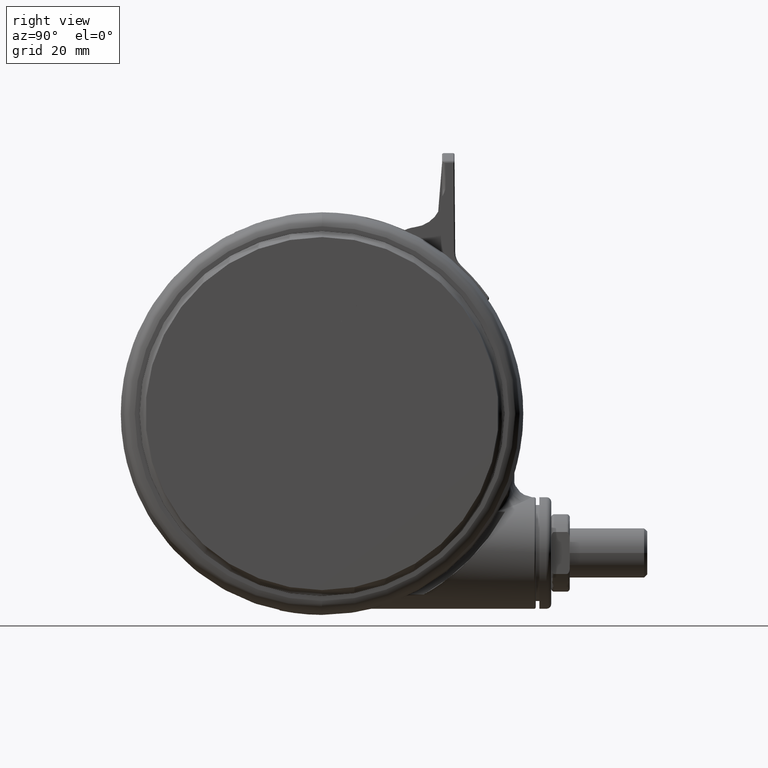
[diagram: clean part render]
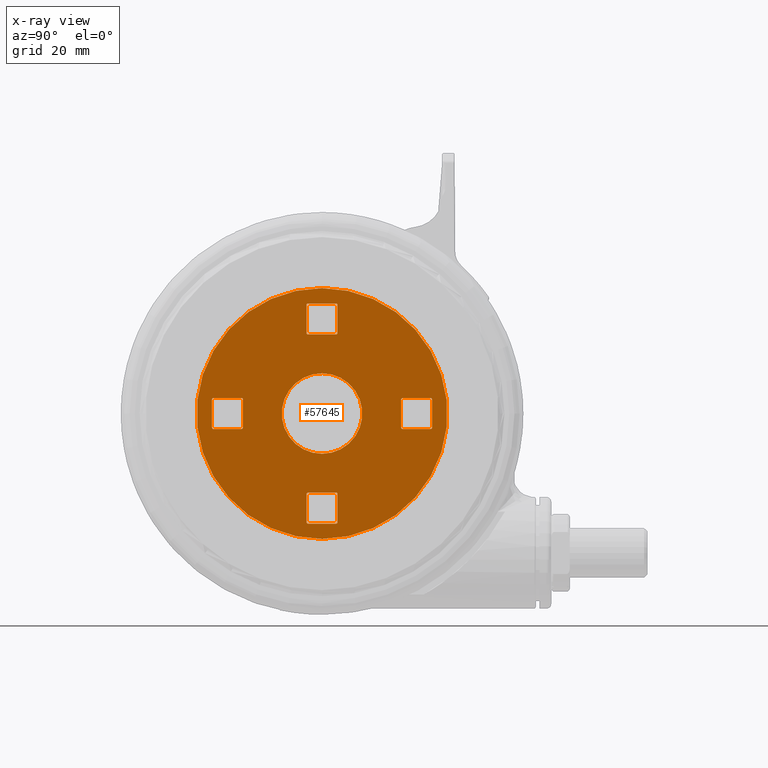
[diagram: x-ray — body ghosted, one internal face saturated and labeled with its STEP entity id]
A machine part, right view, then the same camera in x-ray: the body is ghosted and one INTERNAL B-rep face — a face not visible from any outside direction — is saturated and labeled: STEP entity #57645.
In plain terms, the highlighted planar face has unit normal (-1, 0, 0).
Its self-contained STEP definition (entity closure, byte-faithful):
#161 = EDGE_CURVE ( 'NONE', #8441, #63130, #54977, .T. ) ;
#322 = ORIENTED_EDGE ( 'NONE', *, *, #51295, .F. ) ;
#428 = CARTESIAN_POINT ( 'NONE',  ( -26.04999999999997200, 4.499999999999881900, -3.800000000000094900 ) ) ;
#753 = CARTESIAN_POINT ( 'NONE',  ( 5.000000000000027500, 35.04999999999996900, -3.800000000000094900 ) ) ;
#840 = VERTEX_POINT ( 'NONE', #64019 ) ;
#1384 = PLANE ( 'NONE',  #15506 ) ;
#1468 = LINE ( 'NONE', #53430, #32961 ) ;
#1544 = DIRECTION ( 'NONE',  ( -1.000000000000000000, 0.0000000000000000000, 0.0000000000000000000 ) ) ;
#1717 = CARTESIAN_POINT ( 'NONE',  ( -4.999999999999972500, 26.04999999999997200, -3.800000000000094900 ) ) ;
#2146 = LINE ( 'NONE', #57608, #68961 ) ;
#2543 = CARTESIAN_POINT ( 'NONE',  ( -4.499999999999971600, 26.04999999999997200, -3.800000000000094900 ) ) ;
#2713 = CIRCLE ( 'NONE', #47884, 0.5000000000000004400 ) ;
#2761 = LINE ( 'NONE', #50977, #67626 ) ;
#2856 = CARTESIAN_POINT ( 'NONE',  ( 4.500000000000027500, -35.05000000000002600, -3.800000000000094900 ) ) ;
#3029 = DIRECTION ( 'NONE',  ( -1.000000000000000000, 0.0000000000000000000, 0.0000000000000000000 ) ) ;
#3150 = CARTESIAN_POINT ( 'NONE',  ( -40.49999999999997200, -2.775557561562891400E-014, -3.800000000000094900 ) ) ;
#3200 = VERTEX_POINT ( 'NONE', #66748 ) ;
#3324 = EDGE_CURVE ( 'NONE', #64024, #42868, #7279, .T. ) ;
#3955 = CARTESIAN_POINT ( 'NONE',  ( -35.54999999999996900, -4.500000000000157200, -3.800000000000094900 ) ) ;
#4113 = VECTOR ( 'NONE', #22149, 1000.000000000000000 ) ;
#4374 = VERTEX_POINT ( 'NONE', #10278 ) ;
#4440 = DIRECTION ( 'NONE',  ( -1.000000000000000000, 0.0000000000000000000, 0.0000000000000000000 ) ) ;
#4458 = CIRCLE ( 'NONE', #80221, 0.5000000000000004400 ) ;
#4743 = EDGE_CURVE ( 'NONE', #35742, #20477, #2713, .T. ) ;
#4852 = DIRECTION ( 'NONE',  ( 0.0000000000000000000, 0.0000000000000000000, -1.000000000000000000 ) ) ;
#4883 = EDGE_CURVE ( 'NONE', #840, #50144, #26281, .T. ) ;
#4924 = DIRECTION ( 'NONE',  ( -1.000000000000000000, 0.0000000000000000000, 0.0000000000000000000 ) ) ;
#4938 = CARTESIAN_POINT ( 'NONE',  ( 35.55000000000002600, 4.500000000000351700, -3.800000000000094900 ) ) ;
#5625 = VERTEX_POINT ( 'NONE', #24112 ) ;
#5724 = VERTEX_POINT ( 'NONE', #6448 ) ;
#5732 = ORIENTED_EDGE ( 'NONE', *, *, #47492, .T. ) ;
#5955 = CIRCLE ( 'NONE', #54502, 0.5000000000000004400 ) ;
#6088 = EDGE_LOOP ( 'NONE', ( #16031, #6110, #16023, #64239, #45288, #54819, #26090, #15372 ) ) ;
#6110 = ORIENTED_EDGE ( 'NONE', *, *, #9122, .T. ) ;
#6443 = DIRECTION ( 'NONE',  ( 1.000000000000000000, 0.0000000000000000000, 0.0000000000000000000 ) ) ;
#6448 = CARTESIAN_POINT ( 'NONE',  ( 5.000000000000027500, -35.05000000000002600, -3.800000000000094900 ) ) ;
#6763 = DIRECTION ( 'NONE',  ( -1.000000000000000000, 0.0000000000000000000, 0.0000000000000000000 ) ) ;
#7218 = CARTESIAN_POINT ( 'NONE',  ( 4.500000000000027500, 35.54999999999996900, -3.800000000000094900 ) ) ;
#7279 = CIRCLE ( 'NONE', #57257, 13.00000000000000000 ) ;
#7708 = DIRECTION ( 'NONE',  ( -1.000000000000000000, 0.0000000000000000000, 0.0000000000000000000 ) ) ;
#8168 = ORIENTED_EDGE ( 'NONE', *, *, #74960, .F. ) ;
#8274 = EDGE_CURVE ( 'NONE', #28918, #66979, #25752, .T. ) ;
#8441 = VERTEX_POINT ( 'NONE', #36117 ) ;
#8789 = CARTESIAN_POINT ( 'NONE',  ( 35.05000000000002600, -4.999999999999657200, -3.800000000000094900 ) ) ;
#8878 = DIRECTION ( 'NONE',  ( -1.000000000000000000, 0.0000000000000000000, 0.0000000000000000000 ) ) ;
#8898 = VERTEX_POINT ( 'NONE', #28825 ) ;
#9122 = EDGE_CURVE ( 'NONE', #71071, #79209, #5955, .T. ) ;
#9169 = DIRECTION ( 'NONE',  ( -1.000000000000000000, 0.0000000000000000000, 0.0000000000000000000 ) ) ;
#9193 = LINE ( 'NONE', #32309, #57338 ) ;
#10278 = CARTESIAN_POINT ( 'NONE',  ( -4.999999999999972500, 35.04999999999996900, -3.800000000000094900 ) ) ;
#10374 = CARTESIAN_POINT ( 'NONE',  ( -12.99999999999997200, -2.775557561562891400E-014, -3.800000000000094900 ) ) ;
#11351 = VERTEX_POINT ( 'NONE', #60064 ) ;
#11688 = DIRECTION ( 'NONE',  ( 0.0000000000000000000, 0.0000000000000000000, -1.000000000000000000 ) ) ;
#11876 = AXIS2_PLACEMENT_3D ( 'NONE', #428, #44429, #6763 ) ;
#12312 = ORIENTED_EDGE ( 'NONE', *, *, #72865, .T. ) ;
#12522 = VECTOR ( 'NONE', #39923, 1000.000000000000000 ) ;
#13104 = CARTESIAN_POINT ( 'NONE',  ( -35.04999999999996900, -4.500000000000157200, -3.800000000000094900 ) ) ;
#13158 = AXIS2_PLACEMENT_3D ( 'NONE', #42558, #4852, #48801 ) ;
#13251 = CARTESIAN_POINT ( 'NONE',  ( 2.775557561562891400E-014, -2.775557561562891400E-014, -3.800000000000094900 ) ) ;
#14377 = CARTESIAN_POINT ( 'NONE',  ( 35.05000000000002600, 5.000000000000342800, -3.800000000000094900 ) ) ;
#14631 = EDGE_CURVE ( 'NONE', #8441, #58967, #45954, .T. ) ;
#14870 = VERTEX_POINT ( 'NONE', #23390 ) ;
#14876 = CARTESIAN_POINT ( 'NONE',  ( -4.499999999999971600, -25.55000000000002900, -3.800000000000094900 ) ) ;
#15238 = EDGE_CURVE ( 'NONE', #4374, #66979, #56646, .T. ) ;
#15372 = ORIENTED_EDGE ( 'NONE', *, *, #17020, .T. ) ;
#15506 = AXIS2_PLACEMENT_3D ( 'NONE', #45099, #45381, #7708 ) ;
#15562 = DIRECTION ( 'NONE',  ( 1.047444401652940200E-014, -1.000000000000000000, 0.0000000000000000000 ) ) ;
#15838 = VERTEX_POINT ( 'NONE', #50979 ) ;
#15972 = CARTESIAN_POINT ( 'NONE',  ( -25.54999999999997200, -4.500000000000117200, -3.800000000000094900 ) ) ;
#16023 = ORIENTED_EDGE ( 'NONE', *, *, #49886, .F. ) ;
#16031 = ORIENTED_EDGE ( 'NONE', *, *, #19294, .F. ) ;
#16070 = EDGE_CURVE ( 'NONE', #35742, #53938, #1468, .T. ) ;
#16399 = CIRCLE ( 'NONE', #34636, 0.4999999999999995600 ) ;
#16814 = ORIENTED_EDGE ( 'NONE', *, *, #25333, .T. ) ;
#16848 = AXIS2_PLACEMENT_3D ( 'NONE', #78284, #40734, #3029 ) ;
#16857 = ORIENTED_EDGE ( 'NONE', *, *, #39598, .F. ) ;
#17020 = EDGE_CURVE ( 'NONE', #55137, #11351, #49492, .T. ) ;
#17314 = ORIENTED_EDGE ( 'NONE', *, *, #41868, .F. ) ;
#17614 = CARTESIAN_POINT ( 'NONE',  ( -4.999999999999972500, -26.05000000000002900, -3.800000000000094900 ) ) ;
#18223 = VERTEX_POINT ( 'NONE', #45674 ) ;
#19095 = CARTESIAN_POINT ( 'NONE',  ( 26.05000000000002900, -4.499999999999752200, -3.800000000000094900 ) ) ;
#19113 = ORIENTED_EDGE ( 'NONE', *, *, #26263, .T. ) ;
#19294 = EDGE_CURVE ( 'NONE', #71071, #11351, #81178, .T. ) ;
#19392 = DIRECTION ( 'NONE',  ( -1.000000000000000000, 0.0000000000000000000, 0.0000000000000000000 ) ) ;
#19395 = ORIENTED_EDGE ( 'NONE', *, *, #15238, .F. ) ;
#19544 = DIRECTION ( 'NONE',  ( -1.000000000000000000, 0.0000000000000000000, 0.0000000000000000000 ) ) ;
#19904 = VECTOR ( 'NONE', #6443, 1000.000000000000000 ) ;
#19945 = DIRECTION ( 'NONE',  ( 1.000000000000000000, 1.047444401652940200E-014, 0.0000000000000000000 ) ) ;
#20055 = CIRCLE ( 'NONE', #47712, 0.4999999999999995600 ) ;
#20477 = VERTEX_POINT ( 'NONE', #8789 ) ;
#21564 = CARTESIAN_POINT ( 'NONE',  ( -4.499999999999971600, -26.05000000000002900, -3.800000000000094900 ) ) ;
#21886 = VECTOR ( 'NONE', #66448, 1000.000000000000000 ) ;
#22149 = DIRECTION ( 'NONE',  ( 3.491481338843135300E-015, -1.000000000000000000, 0.0000000000000000000 ) ) ;
#22251 = FACE_BOUND ( 'NONE', #46866, .T. ) ;
#22548 = CARTESIAN_POINT ( 'NONE',  ( -4.999999999999972500, -25.55000000000002900, -3.800000000000094900 ) ) ;
#23390 = CARTESIAN_POINT ( 'NONE',  ( 4.500000000000027500, -25.55000000000002900, -3.800000000000094900 ) ) ;
#23684 = AXIS2_PLACEMENT_3D ( 'NONE', #13251, #57188, #19544 ) ;
#24112 = CARTESIAN_POINT ( 'NONE',  ( 5.000000000000027500, 26.04999999999997200, -3.800000000000094900 ) ) ;
#24224 = FACE_BOUND ( 'NONE', #35495, .T. ) ;
#24543 = VECTOR ( 'NONE', #35600, 1000.000000000000000 ) ;
#24615 = CARTESIAN_POINT ( 'NONE',  ( 4.500000000000027500, 25.54999999999997200, -3.800000000000094900 ) ) ;
#24619 = CIRCLE ( 'NONE', #24730, 0.4999999999999995600 ) ;
#24730 = AXIS2_PLACEMENT_3D ( 'NONE', #21564, #65478, #27873 ) ;
#25026 = DIRECTION ( 'NONE',  ( 8.673617379884039200E-017, -1.000000000000000000, 0.0000000000000000000 ) ) ;
#25333 = EDGE_CURVE ( 'NONE', #65490, #54581, #63418, .T. ) ;
#25447 = DIRECTION ( 'NONE',  ( -1.000000000000000000, 0.0000000000000000000, 0.0000000000000000000 ) ) ;
#25752 = CIRCLE ( 'NONE', #27077, 0.4999999999999995600 ) ;
#26090 = ORIENTED_EDGE ( 'NONE', *, *, #32573, .F. ) ;
#26263 = EDGE_CURVE ( 'NONE', #74206, #53938, #79961, .T. ) ;
#26281 = CIRCLE ( 'NONE', #16848, 0.5000000000000004400 ) ;
#26674 = DIRECTION ( 'NONE',  ( 0.0000000000000000000, 0.0000000000000000000, -1.000000000000000000 ) ) ;
#27077 = AXIS2_PLACEMENT_3D ( 'NONE', #2543, #46530, #8878 ) ;
#27644 = VERTEX_POINT ( 'NONE', #35654 ) ;
#27873 = DIRECTION ( 'NONE',  ( -1.000000000000000000, 0.0000000000000000000, 0.0000000000000000000 ) ) ;
#27925 = DIRECTION ( 'NONE',  ( 0.0000000000000000000, 0.0000000000000000000, -1.000000000000000000 ) ) ;
#27933 = CARTESIAN_POINT ( 'NONE',  ( 26.05000000000002900, 4.500000000000252200, -3.800000000000094900 ) ) ;
#28089 = CIRCLE ( 'NONE', #46912, 0.5000000000000004400 ) ;
#28144 = FACE_OUTER_BOUND ( 'NONE', #78892, .T. ) ;
#28207 = DIRECTION ( 'NONE',  ( 0.0000000000000000000, 0.0000000000000000000, -1.000000000000000000 ) ) ;
#28825 = CARTESIAN_POINT ( 'NONE',  ( 5.000000000000027500, -26.05000000000002900, -3.800000000000094900 ) ) ;
#28918 = VERTEX_POINT ( 'NONE', #51537 ) ;
#29049 = CIRCLE ( 'NONE', #69997, 0.4999999999999995600 ) ;
#29345 = LINE ( 'NONE', #70374, #77471 ) ;
#29411 = VERTEX_POINT ( 'NONE', #7218 ) ;
#30806 = DIRECTION ( 'NONE',  ( -1.000000000000000000, 0.0000000000000000000, 0.0000000000000000000 ) ) ;
#31712 = ORIENTED_EDGE ( 'NONE', *, *, #64785, .T. ) ;
#31721 = VECTOR ( 'NONE', #61126, 1000.000000000000000 ) ;
#32078 = CARTESIAN_POINT ( 'NONE',  ( -26.04999999999997200, -4.500000000000127000, -3.800000000000094900 ) ) ;
#32240 = CARTESIAN_POINT ( 'NONE',  ( -25.54999999999997200, 4.499999999999877400, -3.800000000000094900 ) ) ;
#32309 = CARTESIAN_POINT ( 'NONE',  ( 5.000000000000027500, -35.55000000000002600, -3.800000000000094900 ) ) ;
#32313 = CARTESIAN_POINT ( 'NONE',  ( -35.54999999999996900, -5.000000000000158100, -3.800000000000094900 ) ) ;
#32573 = EDGE_CURVE ( 'NONE', #55137, #56603, #29345, .T. ) ;
#32961 = VECTOR ( 'NONE', #47124, 1000.000000000000000 ) ;
#33566 = CARTESIAN_POINT ( 'NONE',  ( -4.999999999999972500, -35.55000000000002600, -3.800000000000094900 ) ) ;
#33686 = CIRCLE ( 'NONE', #75150, 13.00000000000000000 ) ;
#33779 = ORIENTED_EDGE ( 'NONE', *, *, #70578, .F. ) ;
#33845 = EDGE_LOOP ( 'NONE', ( #77500, #56795, #65562, #77045, #44550, #81191, #322, #77759 ) ) ;
#34266 = DIRECTION ( 'NONE',  ( -1.000000000000000000, 0.0000000000000000000, 0.0000000000000000000 ) ) ;
#34636 = AXIS2_PLACEMENT_3D ( 'NONE', #65516, #27925, #71839 ) ;
#35162 = ORIENTED_EDGE ( 'NONE', *, *, #40903, .F. ) ;
#35348 = CARTESIAN_POINT ( 'NONE',  ( -4.999999999999972500, -35.05000000000002600, -3.800000000000094900 ) ) ;
#35495 = EDGE_LOOP ( 'NONE', ( #19395, #12312, #43836, #59260, #33779, #74868, #16857, #74862 ) ) ;
#35600 = DIRECTION ( 'NONE',  ( -1.000000000000000000, -1.056118019032824000E-014, 0.0000000000000000000 ) ) ;
#35654 = CARTESIAN_POINT ( 'NONE',  ( 25.55000000000002900, -4.499999999999757500, -3.800000000000094900 ) ) ;
#35722 = LINE ( 'NONE', #46743, #31721 ) ;
#35742 = VERTEX_POINT ( 'NONE', #67727 ) ;
#36117 = CARTESIAN_POINT ( 'NONE',  ( -4.499999999999971600, -35.55000000000002600, -3.800000000000094900 ) ) ;
#36937 = ORIENTED_EDGE ( 'NONE', *, *, #44014, .T. ) ;
#37117 = CARTESIAN_POINT ( 'NONE',  ( 2.775557561562891400E-014, -2.775557561562891400E-014, -3.800000000000094900 ) ) ;
#37241 = CARTESIAN_POINT ( 'NONE',  ( 4.500000000000027500, 35.04999999999996900, -3.800000000000094900 ) ) ;
#37344 = LINE ( 'NONE', #58406, #54015 ) ;
#37822 = CARTESIAN_POINT ( 'NONE',  ( -4.999999999999972500, 25.54999999999997200, -3.800000000000094900 ) ) ;
#38036 = VECTOR ( 'NONE', #25026, 1000.000000000000000 ) ;
#38424 = DIRECTION ( 'NONE',  ( -1.000000000000000000, 0.0000000000000000000, 0.0000000000000000000 ) ) ;
#38633 = EDGE_CURVE ( 'NONE', #5724, #58967, #20055, .T. ) ;
#38974 = FACE_BOUND ( 'NONE', #6088, .T. ) ;
#39130 = DIRECTION ( 'NONE',  ( -3.491481338843135300E-015, 1.000000000000000000, 0.0000000000000000000 ) ) ;
#39256 = DIRECTION ( 'NONE',  ( 0.0000000000000000000, 0.0000000000000000000, -1.000000000000000000 ) ) ;
#39598 = EDGE_CURVE ( 'NONE', #28918, #45297, #51370, .T. ) ;
#39923 = DIRECTION ( 'NONE',  ( 1.000000000000000000, 0.0000000000000000000, 0.0000000000000000000 ) ) ;
#40734 = DIRECTION ( 'NONE',  ( 0.0000000000000000000, 0.0000000000000000000, -1.000000000000000000 ) ) ;
#40903 = EDGE_CURVE ( 'NONE', #42983, #27644, #74758, .T. ) ;
#41322 = EDGE_CURVE ( 'NONE', #75895, #59349, #24619, .T. ) ;
#41851 = CARTESIAN_POINT ( 'NONE',  ( -26.04999999999997200, 4.999999999999881900, -3.800000000000094900 ) ) ;
#41868 = EDGE_CURVE ( 'NONE', #74206, #18223, #70690, .T. ) ;
#42116 = DIRECTION ( 'NONE',  ( 0.0000000000000000000, 0.0000000000000000000, -1.000000000000000000 ) ) ;
#42558 = CARTESIAN_POINT ( 'NONE',  ( 35.05000000000002600, 4.500000000000341900, -3.800000000000094900 ) ) ;
#42623 = DIRECTION ( 'NONE',  ( -0.0000000000000000000, -0.0000000000000000000, 1.000000000000000000 ) ) ;
#42868 = VERTEX_POINT ( 'NONE', #10374 ) ;
#42874 = CIRCLE ( 'NONE', #51098, 0.4999999999999995600 ) ;
#42983 = VERTEX_POINT ( 'NONE', #74572 ) ;
#43426 = DIRECTION ( 'NONE',  ( -1.000000000000000000, 0.0000000000000000000, 0.0000000000000000000 ) ) ;
#43546 = DIRECTION ( 'NONE',  ( -1.000000000000000000, 0.0000000000000000000, 0.0000000000000000000 ) ) ;
#43836 = ORIENTED_EDGE ( 'NONE', *, *, #69929, .F. ) ;
#43848 = AXIS2_PLACEMENT_3D ( 'NONE', #80155, #42623, #4924 ) ;
#44014 = EDGE_CURVE ( 'NONE', #54581, #65490, #57698, .T. ) ;
#44167 = ORIENTED_EDGE ( 'NONE', *, *, #67953, .T. ) ;
#44429 = DIRECTION ( 'NONE',  ( 0.0000000000000000000, 0.0000000000000000000, -1.000000000000000000 ) ) ;
#44550 = ORIENTED_EDGE ( 'NONE', *, *, #74655, .F. ) ;
#45099 = CARTESIAN_POINT ( 'NONE',  ( 2.775557561562891400E-014, 53.99999999999997200, -3.800000000000094900 ) ) ;
#45158 = ORIENTED_EDGE ( 'NONE', *, *, #4743, .T. ) ;
#45288 = ORIENTED_EDGE ( 'NONE', *, *, #59417, .F. ) ;
#45297 = VERTEX_POINT ( 'NONE', #24615 ) ;
#45381 = DIRECTION ( 'NONE',  ( 0.0000000000000000000, 0.0000000000000000000, -1.000000000000000000 ) ) ;
#45674 = CARTESIAN_POINT ( 'NONE',  ( 26.05000000000002900, 5.000000000000252200, -3.800000000000094900 ) ) ;
#45785 = DIRECTION ( 'NONE',  ( -1.000000000000000000, 0.0000000000000000000, 0.0000000000000000000 ) ) ;
#45954 = LINE ( 'NONE', #33566, #12522 ) ;
#46530 = DIRECTION ( 'NONE',  ( 0.0000000000000000000, 0.0000000000000000000, -1.000000000000000000 ) ) ;
#46671 = EDGE_CURVE ( 'NONE', #5625, #45297, #16399, .T. ) ;
#46743 = CARTESIAN_POINT ( 'NONE',  ( -25.54999999999997200, 4.999999999999881900, -3.800000000000094900 ) ) ;
#46824 = DIRECTION ( 'NONE',  ( 0.0000000000000000000, 0.0000000000000000000, -1.000000000000000000 ) ) ;
#46866 = EDGE_LOOP ( 'NONE', ( #44167, #57971 ) ) ;
#46912 = AXIS2_PLACEMENT_3D ( 'NONE', #27933, #71851, #34266 ) ;
#47124 = DIRECTION ( 'NONE',  ( -1.047444401652940200E-014, 1.000000000000000000, 0.0000000000000000000 ) ) ;
#47492 = EDGE_CURVE ( 'NONE', #42983, #18223, #28089, .T. ) ;
#47499 = EDGE_CURVE ( 'NONE', #14870, #8898, #42874, .T. ) ;
#47712 = AXIS2_PLACEMENT_3D ( 'NONE', #2856, #46824, #9169 ) ;
#47884 = AXIS2_PLACEMENT_3D ( 'NONE', #64300, #26674, #70616 ) ;
#48454 = CARTESIAN_POINT ( 'NONE',  ( 4.500000000000027500, -35.55000000000002600, -3.800000000000094900 ) ) ;
#48801 = DIRECTION ( 'NONE',  ( -1.000000000000000000, 0.0000000000000000000, 0.0000000000000000000 ) ) ;
#49309 = CARTESIAN_POINT ( 'NONE',  ( -4.499999999999971600, -35.05000000000002600, -3.800000000000094900 ) ) ;
#49492 = CIRCLE ( 'NONE', #80814, 0.5000000000000004400 ) ;
#49886 = EDGE_CURVE ( 'NONE', #840, #79209, #54256, .T. ) ;
#50144 = VERTEX_POINT ( 'NONE', #69526 ) ;
#50282 = CARTESIAN_POINT ( 'NONE',  ( -4.999999999999972500, 35.54999999999996900, -3.800000000000094900 ) ) ;
#50337 = ORIENTED_EDGE ( 'NONE', *, *, #16070, .F. ) ;
#50354 = CARTESIAN_POINT ( 'NONE',  ( -35.04999999999996900, -5.000000000000158100, -3.800000000000094900 ) ) ;
#50977 = CARTESIAN_POINT ( 'NONE',  ( 5.000000000000027500, 25.54999999999997200, -3.800000000000094900 ) ) ;
#50979 = CARTESIAN_POINT ( 'NONE',  ( 26.05000000000002900, -4.999999999999758400, -3.800000000000094900 ) ) ;
#51098 = AXIS2_PLACEMENT_3D ( 'NONE', #65803, #28207, #72123 ) ;
#51164 = EDGE_CURVE ( 'NONE', #81174, #56603, #63850, .T. ) ;
#51295 = EDGE_CURVE ( 'NONE', #14870, #59349, #37344, .T. ) ;
#51370 = LINE ( 'NONE', #37822, #19904 ) ;
#51537 = CARTESIAN_POINT ( 'NONE',  ( -4.499999999999971600, 25.54999999999997200, -3.800000000000094900 ) ) ;
#53008 = EDGE_CURVE ( 'NONE', #5724, #8898, #9193, .T. ) ;
#53430 = CARTESIAN_POINT ( 'NONE',  ( 35.55000000000002600, -4.999999999999657200, -3.800000000000094900 ) ) ;
#53938 = VERTEX_POINT ( 'NONE', #4938 ) ;
#54015 = VECTOR ( 'NONE', #45785, 1000.000000000000000 ) ;
#54256 = LINE ( 'NONE', #72648, #4113 ) ;
#54502 = AXIS2_PLACEMENT_3D ( 'NONE', #13104, #57043, #19392 ) ;
#54581 = VERTEX_POINT ( 'NONE', #3150 ) ;
#54819 = ORIENTED_EDGE ( 'NONE', *, *, #51164, .T. ) ;
#54977 = CIRCLE ( 'NONE', #60774, 0.4999999999999995600 ) ;
#55137 = VERTEX_POINT ( 'NONE', #15972 ) ;
#55621 = DIRECTION ( 'NONE',  ( -1.000000000000000000, 0.0000000000000000000, 0.0000000000000000000 ) ) ;
#56603 = VERTEX_POINT ( 'NONE', #32240 ) ;
#56646 = LINE ( 'NONE', #50282, #38036 ) ;
#56795 = ORIENTED_EDGE ( 'NONE', *, *, #38633, .T. ) ;
#57043 = DIRECTION ( 'NONE',  ( 0.0000000000000000000, 0.0000000000000000000, -1.000000000000000000 ) ) ;
#57188 = DIRECTION ( 'NONE',  ( -0.0000000000000000000, -0.0000000000000000000, 1.000000000000000000 ) ) ;
#57257 = AXIS2_PLACEMENT_3D ( 'NONE', #37117, #80972, #43426 ) ;
#57338 = VECTOR ( 'NONE', #69905, 1000.000000000000000 ) ;
#57603 = FACE_BOUND ( 'NONE', #33845, .T. ) ;
#57608 = CARTESIAN_POINT ( 'NONE',  ( 25.55000000000002900, -4.999999999999758400, -3.800000000000094900 ) ) ;
#57645 = ADVANCED_FACE ( 'NONE', ( #28144, #72343, #57603, #38974, #24224, #22251 ), #1384, .F. ) ;
#57698 = CIRCLE ( 'NONE', #43848, 40.50000000000000000 ) ;
#57971 = ORIENTED_EDGE ( 'NONE', *, *, #3324, .T. ) ;
#58406 = CARTESIAN_POINT ( 'NONE',  ( 5.000000000000027500, -25.55000000000002900, -3.800000000000094900 ) ) ;
#58812 = CARTESIAN_POINT ( 'NONE',  ( 35.55000000000002600, 5.000000000000352600, -3.800000000000094900 ) ) ;
#58967 = VERTEX_POINT ( 'NONE', #48454 ) ;
#59260 = ORIENTED_EDGE ( 'NONE', *, *, #72380, .T. ) ;
#59349 = VERTEX_POINT ( 'NONE', #14876 ) ;
#59417 = EDGE_CURVE ( 'NONE', #81174, #50144, #35722, .T. ) ;
#60064 = CARTESIAN_POINT ( 'NONE',  ( -26.04999999999997200, -5.000000000000127900, -3.800000000000094900 ) ) ;
#60774 = AXIS2_PLACEMENT_3D ( 'NONE', #49309, #11688, #55621 ) ;
#61126 = DIRECTION ( 'NONE',  ( -1.000000000000000000, -3.491481338843135300E-015, 0.0000000000000000000 ) ) ;
#61841 = EDGE_LOOP ( 'NONE', ( #17314, #19113, #50337, #45158, #8168, #31712, #35162, #5732 ) ) ;
#63045 = DIRECTION ( 'NONE',  ( 0.0000000000000000000, 0.0000000000000000000, -1.000000000000000000 ) ) ;
#63130 = VERTEX_POINT ( 'NONE', #35348 ) ;
#63418 = CIRCLE ( 'NONE', #23684, 40.50000000000000000 ) ;
#63850 = CIRCLE ( 'NONE', #11876, 0.5000000000000004400 ) ;
#64019 = CARTESIAN_POINT ( 'NONE',  ( -35.54999999999996900, 4.499999999999847200, -3.800000000000094900 ) ) ;
#64024 = VERTEX_POINT ( 'NONE', #76552 ) ;
#64239 = ORIENTED_EDGE ( 'NONE', *, *, #4883, .T. ) ;
#64300 = CARTESIAN_POINT ( 'NONE',  ( 35.05000000000002600, -4.499999999999657200, -3.800000000000094900 ) ) ;
#64311 = CARTESIAN_POINT ( 'NONE',  ( 40.50000000000002800, -2.276513990910344700E-014, -3.800000000000094900 ) ) ;
#64513 = VECTOR ( 'NONE', #76203, 1000.000000000000000 ) ;
#64781 = VECTOR ( 'NONE', #30806, 1000.000000000000000 ) ;
#64785 = EDGE_CURVE ( 'NONE', #15838, #27644, #4458, .T. ) ;
#65478 = DIRECTION ( 'NONE',  ( 0.0000000000000000000, 0.0000000000000000000, -1.000000000000000000 ) ) ;
#65490 = VERTEX_POINT ( 'NONE', #64311 ) ;
#65516 = CARTESIAN_POINT ( 'NONE',  ( 4.500000000000027500, 26.04999999999997200, -3.800000000000094900 ) ) ;
#65562 = ORIENTED_EDGE ( 'NONE', *, *, #14631, .F. ) ;
#65803 = CARTESIAN_POINT ( 'NONE',  ( 4.500000000000027500, -26.05000000000002900, -3.800000000000094900 ) ) ;
#66448 = DIRECTION ( 'NONE',  ( 0.0000000000000000000, -1.000000000000000000, 0.0000000000000000000 ) ) ;
#66748 = CARTESIAN_POINT ( 'NONE',  ( -4.499999999999971600, 35.54999999999996900, -3.800000000000094900 ) ) ;
#66751 = LINE ( 'NONE', #74700, #64781 ) ;
#66979 = VERTEX_POINT ( 'NONE', #1717 ) ;
#67626 = VECTOR ( 'NONE', #69919, 1000.000000000000000 ) ;
#67727 = CARTESIAN_POINT ( 'NONE',  ( 35.55000000000002600, -4.499999999999652700, -3.800000000000094900 ) ) ;
#67953 = EDGE_CURVE ( 'NONE', #42868, #64024, #33686, .T. ) ;
#68854 = VECTOR ( 'NONE', #15562, 1000.000000000000000 ) ;
#68961 = VECTOR ( 'NONE', #19945, 1000.000000000000000 ) ;
#69526 = CARTESIAN_POINT ( 'NONE',  ( -35.04999999999996900, 4.999999999999852600, -3.800000000000094900 ) ) ;
#69905 = DIRECTION ( 'NONE',  ( -8.673617379884039200E-017, 1.000000000000000000, 0.0000000000000000000 ) ) ;
#69919 = DIRECTION ( 'NONE',  ( 0.0000000000000000000, 1.000000000000000000, 0.0000000000000000000 ) ) ;
#69929 = EDGE_CURVE ( 'NONE', #29411, #3200, #66751, .T. ) ;
#69997 = AXIS2_PLACEMENT_3D ( 'NONE', #79671, #42116, #4440 ) ;
#70374 = CARTESIAN_POINT ( 'NONE',  ( -25.54999999999997200, -5.000000000000118100, -3.800000000000094900 ) ) ;
#70578 = EDGE_CURVE ( 'NONE', #5625, #78384, #2761, .T. ) ;
#70616 = DIRECTION ( 'NONE',  ( -1.000000000000000000, 0.0000000000000000000, 0.0000000000000000000 ) ) ;
#70690 = LINE ( 'NONE', #58812, #24543 ) ;
#71071 = VERTEX_POINT ( 'NONE', #50354 ) ;
#71839 = DIRECTION ( 'NONE',  ( -1.000000000000000000, 0.0000000000000000000, 0.0000000000000000000 ) ) ;
#71851 = DIRECTION ( 'NONE',  ( 0.0000000000000000000, 0.0000000000000000000, -1.000000000000000000 ) ) ;
#71970 = LINE ( 'NONE', #22548, #21886 ) ;
#72123 = DIRECTION ( 'NONE',  ( -1.000000000000000000, 0.0000000000000000000, 0.0000000000000000000 ) ) ;
#72343 = FACE_BOUND ( 'NONE', #61841, .T. ) ;
#72380 = EDGE_CURVE ( 'NONE', #29411, #78384, #73335, .T. ) ;
#72648 = CARTESIAN_POINT ( 'NONE',  ( -35.54999999999996900, 4.999999999999852600, -3.800000000000094900 ) ) ;
#72865 = EDGE_CURVE ( 'NONE', #4374, #3200, #29049, .T. ) ;
#73167 = AXIS2_PLACEMENT_3D ( 'NONE', #37241, #81090, #43546 ) ;
#73335 = CIRCLE ( 'NONE', #73167, 0.4999999999999995600 ) ;
#74206 = VERTEX_POINT ( 'NONE', #14377 ) ;
#74572 = CARTESIAN_POINT ( 'NONE',  ( 25.55000000000002900, 4.500000000000241600, -3.800000000000094900 ) ) ;
#74655 = EDGE_CURVE ( 'NONE', #75895, #63130, #71970, .T. ) ;
#74700 = CARTESIAN_POINT ( 'NONE',  ( 5.000000000000027500, 35.54999999999996900, -3.800000000000094900 ) ) ;
#74758 = LINE ( 'NONE', #77902, #68854 ) ;
#74862 = ORIENTED_EDGE ( 'NONE', *, *, #8274, .T. ) ;
#74868 = ORIENTED_EDGE ( 'NONE', *, *, #46671, .T. ) ;
#74960 = EDGE_CURVE ( 'NONE', #15838, #20477, #2146, .T. ) ;
#75150 = AXIS2_PLACEMENT_3D ( 'NONE', #76799, #39256, #1544 ) ;
#75895 = VERTEX_POINT ( 'NONE', #17614 ) ;
#75963 = DIRECTION ( 'NONE',  ( 0.0000000000000000000, 0.0000000000000000000, -1.000000000000000000 ) ) ;
#76203 = DIRECTION ( 'NONE',  ( 1.000000000000000000, 3.578217512641975300E-015, 0.0000000000000000000 ) ) ;
#76552 = CARTESIAN_POINT ( 'NONE',  ( 13.00000000000002700, -2.616353477673735300E-014, -3.800000000000094900 ) ) ;
#76799 = CARTESIAN_POINT ( 'NONE',  ( 2.775557561562891400E-014, -2.775557561562891400E-014, -3.800000000000094900 ) ) ;
#77045 = ORIENTED_EDGE ( 'NONE', *, *, #161, .T. ) ;
#77471 = VECTOR ( 'NONE', #39130, 1000.000000000000000 ) ;
#77500 = ORIENTED_EDGE ( 'NONE', *, *, #53008, .F. ) ;
#77759 = ORIENTED_EDGE ( 'NONE', *, *, #47499, .T. ) ;
#77902 = CARTESIAN_POINT ( 'NONE',  ( 25.55000000000002900, 5.000000000000242500, -3.800000000000094900 ) ) ;
#78284 = CARTESIAN_POINT ( 'NONE',  ( -35.04999999999996900, 4.499999999999852600, -3.800000000000094900 ) ) ;
#78384 = VERTEX_POINT ( 'NONE', #753 ) ;
#78892 = EDGE_LOOP ( 'NONE', ( #36937, #16814 ) ) ;
#79209 = VERTEX_POINT ( 'NONE', #3955 ) ;
#79671 = CARTESIAN_POINT ( 'NONE',  ( -4.499999999999971600, 35.04999999999996900, -3.800000000000094900 ) ) ;
#79961 = CIRCLE ( 'NONE', #13158, 0.5000000000000004400 ) ;
#80155 = CARTESIAN_POINT ( 'NONE',  ( 2.775557561562891400E-014, -2.775557561562891400E-014, -3.800000000000094900 ) ) ;
#80221 = AXIS2_PLACEMENT_3D ( 'NONE', #19095, #63045, #25447 ) ;
#80814 = AXIS2_PLACEMENT_3D ( 'NONE', #32078, #75963, #38424 ) ;
#80972 = DIRECTION ( 'NONE',  ( 0.0000000000000000000, 0.0000000000000000000, -1.000000000000000000 ) ) ;
#81090 = DIRECTION ( 'NONE',  ( 0.0000000000000000000, 0.0000000000000000000, -1.000000000000000000 ) ) ;
#81174 = VERTEX_POINT ( 'NONE', #41851 ) ;
#81178 = LINE ( 'NONE', #32313, #64513 ) ;
#81191 = ORIENTED_EDGE ( 'NONE', *, *, #41322, .T. ) ;